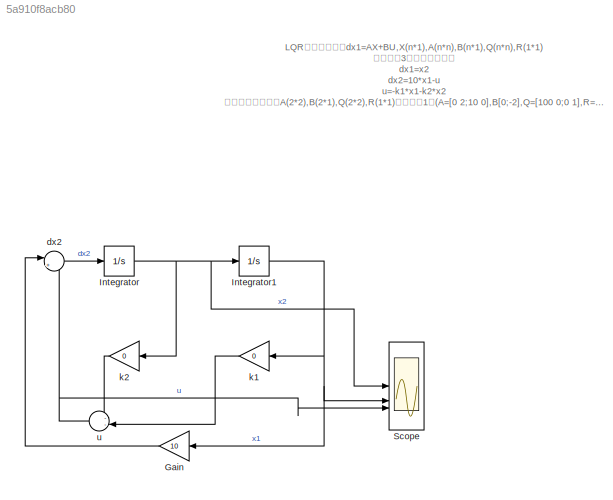
MODEL slx_5a910f8acb80
KIND model
CONFIG AbsTol = auto
CONFIG EnableMultiTasking = off
CONFIG FixedStep = auto
CONFIG MaxStep = auto
CONFIG MinStep = auto
CONFIG RelTol = 1e-3
CONFIG SampleTimeConstraint = Unconstrained
CONFIG SolverName = VariableStepAuto
CONFIG StartTime = 0.0
CONFIG StopTime = 30
BLOCK [Gain] Gain
  Gain = 10
BLOCK [Integrator] Integrator
BLOCK [Integrator] Integrator1
  InitialCondition = 5
BLOCK [Scope] Scope
  Floating = off
  NumInputPorts = 3
  ScopeSpecificationString = Simulink.scopes.TimeScopeBlockCfg('CurrentConfiguration', extmgr.ConfigurationSet(extmgr.Configuration('Core','General UI',true),extmgr.Configuration('Core','Source UI',true),extmgr.Configuration('Sources','WiredSimulink',true),extmgr.Configuration('Visuals','Time Domain',true,'SerializedDisplays',{struct('MinYLimReal','-156985897919360912059258370598766884421632.00000','MaxYLimReal','141287308127...<+1782ch>
BLOCK [Sum] dx2
  Inputs = |+-
BLOCK [Gain] k1
  Gain = 0
BLOCK [Gain] k2
  Gain = 0
BLOCK [Sum] u
  Inputs = --|
ANNOTATION (root): LQR模型，这里是dx1=AX+BU,X(n*1),A(n*n),B(n*1),Q(n*n),R(1*1) 这里利用3个等式构造模型 dx1=x2 dx2=10*x1-u u=-k1*x1-k2*x2 然后构造四个矩阵A(2*2),B(2*1),Q(2*2),R(1*1)分别为例1：(A=[0 2;10 0],B[0;-2 ], Q=[100 0;0 1],R=0.1) 例2：(A=[0 2;10 0],B[0;-2 ], Q=[1 0;0 1],R=100) 例3：(A=[0 2;10 0],B[0;-2 ], Q=[1 0;0 100],R=0.1) 例4：(A=[0 2;10 0],B[0;-2 ], Q=[100 0;0 100],R=0.1) 例5： 0输入 使用函数lqr(A,B,Q,R)算出k1,k2。由于LQR的状态矩阵F最后会收敛到一个常数矩阵，之间使用这个矩阵对控制量u...<+49ch>
LINE Gain:1 -> dx2:1
NET Integrator1:1 -> Gain:1, Scope:2, k1:1
NET Integrator:1 -> Integrator1:1, Scope:1, k2:1
LINE dx2:1 -> Integrator:1
LINE k1:1 -> u:2
LINE k2:1 -> u:1
NET u:1 -> Scope:3, dx2:2
note: NET lines group one-source signal fan-out (src -> all destinations, sorted); 1:1 wires keep LINE
